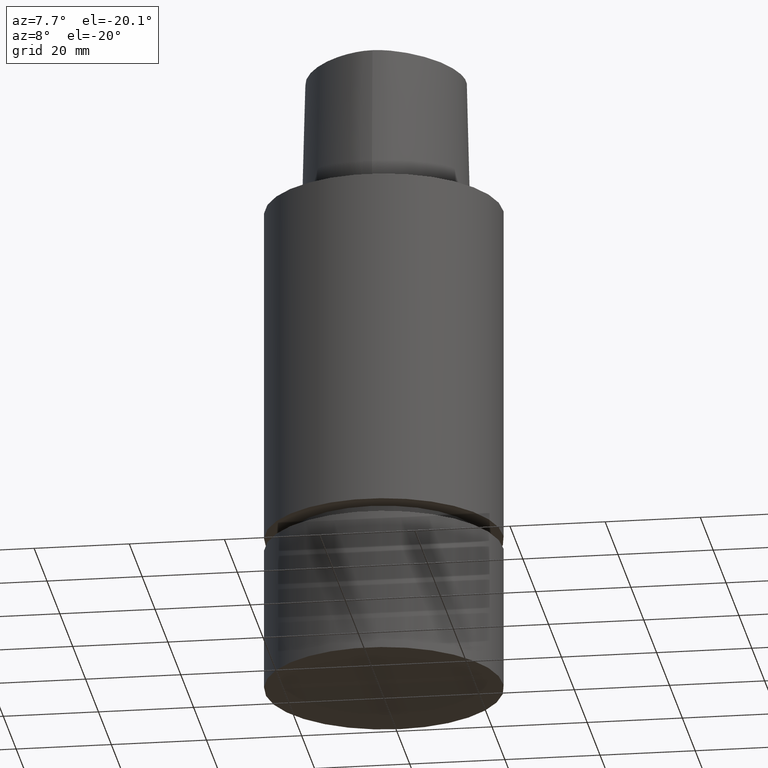
[diagram: clean part render]
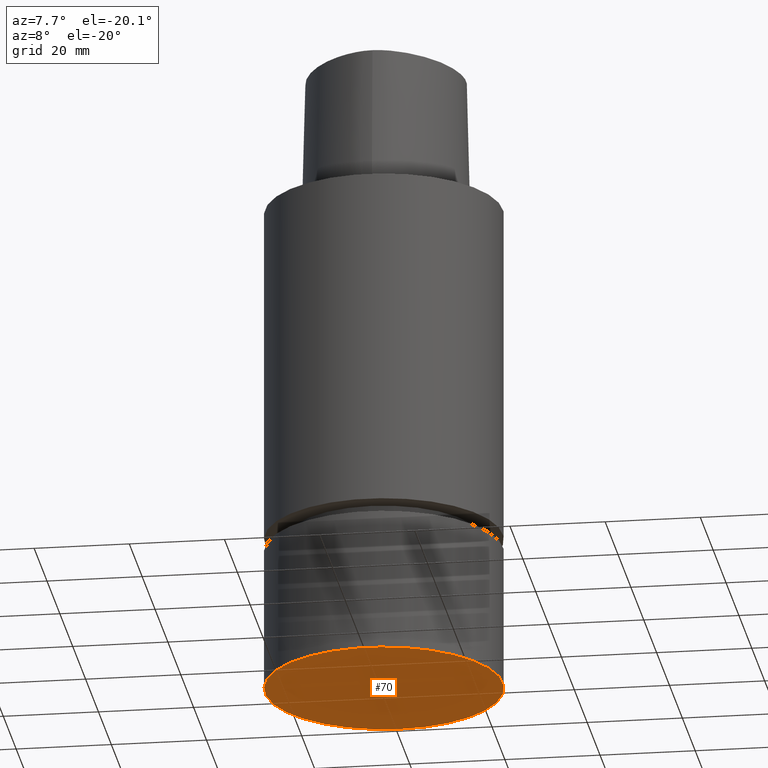
[diagram: same view with one face highlighted and labeled with its STEP entity id]
A machine part, auxiliary view. The second image highlights one B-rep face of the part: STEP entity #70.
In plain terms, the highlighted planar face has unit normal (0, 0, -1).
Its self-contained STEP definition (entity closure, byte-faithful):
#70=ADVANCED_FACE('Unnamed[1]',(#163),#164,.T.);
#120=EDGE_CURVE('Unnamed[1]',#235,#235,#236,.T.);
#163=FACE_OUTER_BOUND('',#331,.T.);
#164=PLANE('',#332);
#235=VERTEX_POINT('',#898);
#236=CIRCLE('',#899,25.0);
#331=EDGE_LOOP('',(#925));
#332=AXIS2_PLACEMENT_3D('',#926,#927,#928);
#898=CARTESIAN_POINT('',(6.4293956955236E-015,25.0,-105.0));
#899=AXIS2_PLACEMENT_3D('',#1002,#1003,#1004);
#925=ORIENTED_EDGE('',*,*,#120,.T.);
#926=CARTESIAN_POINT('',(6.4293956955236E-015,12.5,-105.0));
#927=DIRECTION('',(6.12323399573677E-017,1.22464679914735E-016,-1.0));
#928=DIRECTION('',(-1.23259516440783E-032,1.0,1.22464679914735E-016));
#1002=CARTESIAN_POINT('',(6.4293956955236E-015,1.28587913910472E-014,-105.0));
#1003=DIRECTION('',(6.12323399573677E-017,1.22464679914735E-016,-1.0));
#1004=DIRECTION('',(-1.23259516440783E-032,1.0,1.22464679914735E-016));